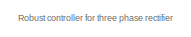
[diagram: root canvas - part 1/3, top center region]
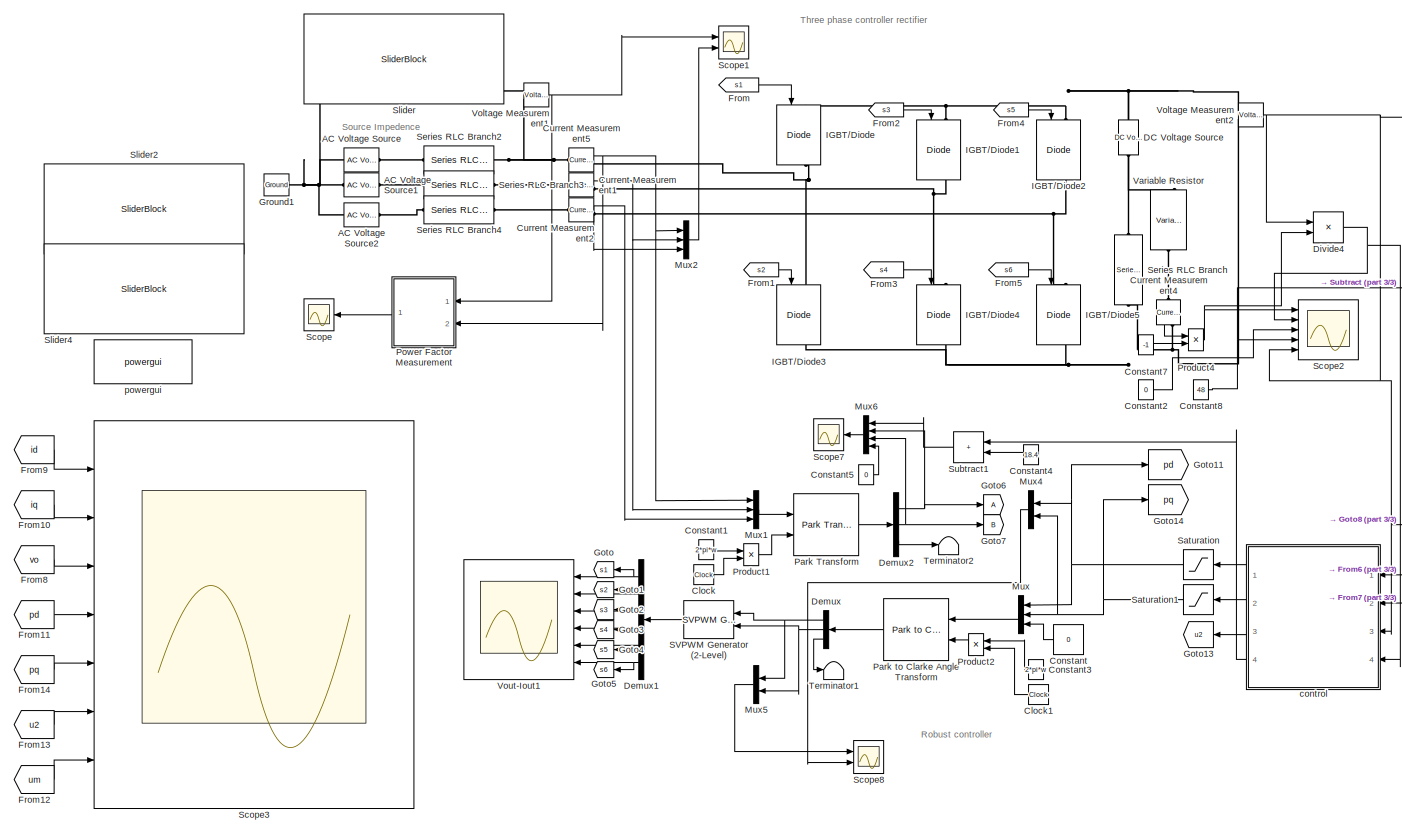
[diagram: root canvas - part 2/3, most of the canvas]
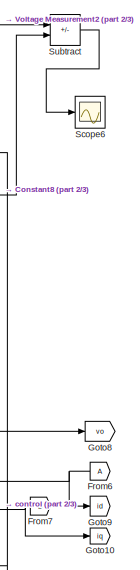
[diagram: root canvas - part 3/3, middle right region]
MODEL slx_1be8ffe14da0
KIND model
CONFIG AbsTol = auto
CONFIG EnableMultiTasking = off
CONFIG FixedStep = auto
CONFIG MaxStep = auto
CONFIG MinStep = auto
CONFIG RelTol = 1e-3
CONFIG SampleTimeConstraint = Unconstrained
CONFIG SolverName = VariableStepAuto
CONFIG StartTime = 0.0
CONFIG StopTime = 3
BLOCK [Reference] AC Voltage Source  REF=spsACVoltageSourceLib/AC Voltage Source
  Ports = [0, 0, 0, 0, 0, 1, 1]
  SourceBlock = spsACVoltageSourceLib/AC Voltage Source
  SourceProductBaseCode = PS
  SourceType = AC Voltage Source
BLOCK [Reference] AC Voltage Source1  REF=spsACVoltageSourceLib/AC Voltage Source
  Ports = [0, 0, 0, 0, 0, 1, 1]
  SourceBlock = spsACVoltageSourceLib/AC Voltage Source
  SourceProductBaseCode = PS
  SourceType = AC Voltage Source
BLOCK [Reference] AC Voltage Source2  REF=spsACVoltageSourceLib/AC Voltage Source
  Ports = [0, 0, 0, 0, 0, 1, 1]
  SourceBlock = spsACVoltageSourceLib/AC Voltage Source
  SourceProductBaseCode = PS
  SourceType = AC Voltage Source
BLOCK [Clock] Clock
BLOCK [Clock] Clock1
BLOCK [Constant] Constant
  Value = 0
BLOCK [Constant] Constant1
  Value = 2*pi*w
BLOCK [Constant] Constant2
  Value = 0
BLOCK [Constant] Constant3
  Value = 2*pi*w
BLOCK [Constant] Constant4
  Value = 18.4
BLOCK [Constant] Constant5
  Value = 0
BLOCK [Constant] Constant7
  Value = -1
BLOCK [Constant] Constant8
  Value = 48
BLOCK [Reference] Current Measurement1  REF=spsCurrentMeasurementLib/Current Measurement
  Ports = [0, 1, 0, 0, 0, 1, 1]
  SourceBlock = spsCurrentMeasurementLib/Current Measurement
  SourceProductBaseCode = PS
  SourceType = Current Measurement
BLOCK [Reference] Current Measurement2  REF=spsCurrentMeasurementLib/Current Measurement
  Ports = [0, 1, 0, 0, 0, 1, 1]
  SourceBlock = spsCurrentMeasurementLib/Current Measurement
  SourceProductBaseCode = PS
  SourceType = Current Measurement
BLOCK [Reference] Current Measurement4  REF=spsCurrentMeasurementLib/Current Measurement
  NameLocation = left
  Ports = [0, 1, 0, 0, 0, 1, 1]
  SourceBlock = spsCurrentMeasurementLib/Current Measurement
  SourceProductBaseCode = PS
  SourceType = Current Measurement
BLOCK [Reference] Current Measurement5  REF=spsCurrentMeasurementLib/Current Measurement
  Ports = [0, 1, 0, 0, 0, 1, 1]
  SourceBlock = spsCurrentMeasurementLib/Current Measurement
  SourceProductBaseCode = PS
  SourceType = Current Measurement
BLOCK [Reference] DC Voltage Source  REF=spsDCVoltageSourceLib/DC Voltage Source
  Ports = [0, 0, 0, 0, 0, 1, 1]
  SourceBlock = spsDCVoltageSourceLib/DC Voltage Source
  SourceProductBaseCode = PS
  SourceType = DC Voltage Source
BLOCK [Demux] Demux
  Outputs = 3
  Ports = [1, 3]
BLOCK [Demux] Demux1
  Outputs = 6
  Ports = [1, 6]
BLOCK [Demux] Demux2
  Outputs = 3
  Ports = [1, 3]
BLOCK [Product] Divide4
  Inputs = */
  Ports = [2, 1]
BLOCK [From] From
  CloseFcn = tagdialog Close
  GotoTag = s1
BLOCK [From] From1
  CloseFcn = tagdialog Close
  GotoTag = s2
BLOCK [From] From10
  GotoTag = iq
BLOCK [From] From11
  GotoTag = pd
BLOCK [From] From12
  GotoTag = um
BLOCK [From] From13
  GotoTag = u2
BLOCK [From] From14
  GotoTag = pq
BLOCK [From] From2
  CloseFcn = tagdialog Close
  GotoTag = s3
BLOCK [From] From3
  CloseFcn = tagdialog Close
  GotoTag = s4
BLOCK [From] From4
  CloseFcn = tagdialog Close
  GotoTag = s5
BLOCK [From] From5
  CloseFcn = tagdialog Close
  GotoTag = s6
BLOCK [From] From6
BLOCK [From] From7
  GotoTag = B
BLOCK [From] From8
  GotoTag = vo
BLOCK [From] From9
  GotoTag = id
BLOCK [Goto] Goto
  GotoTag = s1
BLOCK [Goto] Goto1
  GotoTag = s2
BLOCK [Goto] Goto10
  GotoTag = iq
BLOCK [Goto] Goto11
  GotoTag = pd
BLOCK [Goto] Goto13
  GotoTag = u2
BLOCK [Goto] Goto14
  GotoTag = pq
BLOCK [Goto] Goto2
  GotoTag = s3
BLOCK [Goto] Goto3
  GotoTag = s4
BLOCK [Goto] Goto4
  GotoTag = s5
BLOCK [Goto] Goto5
  GotoTag = s6
BLOCK [Goto] Goto6
BLOCK [Goto] Goto7
  GotoTag = B
BLOCK [Goto] Goto8
  GotoTag = vo
BLOCK [Goto] Goto9
  GotoTag = id
BLOCK [Reference] Ground1  REF=spsGroundLib/Ground
  Ports = [0, 0, 0, 0, 0, 1]
  SourceBlock = spsGroundLib/Ground
  SourceProductBaseCode = PS
  SourceType = Ground
BLOCK [Reference] IGBT//Diode  REF=spsIGBTDiodeLib/IGBT//Diode
  NameLocation = left
  Ports = [1, 1, 0, 0, 0, 1, 1]
  SourceBlock = spsIGBTDiodeLib/IGBT//Diode
  SourceProductBaseCode = PS
  SourceType = IGBT/Diode
BLOCK [Reference] IGBT//Diode1  REF=spsIGBTDiodeLib/IGBT//Diode
  NameLocation = left
  Ports = [1, 1, 0, 0, 0, 1, 1]
  SourceBlock = spsIGBTDiodeLib/IGBT//Diode
  SourceProductBaseCode = PS
  SourceType = IGBT/Diode
BLOCK [Reference] IGBT//Diode2  REF=spsIGBTDiodeLib/IGBT//Diode
  NameLocation = left
  Ports = [1, 1, 0, 0, 0, 1, 1]
  SourceBlock = spsIGBTDiodeLib/IGBT//Diode
  SourceProductBaseCode = PS
  SourceType = IGBT/Diode
BLOCK [Reference] IGBT//Diode3  REF=spsIGBTDiodeLib/IGBT//Diode
  NameLocation = left
  Ports = [1, 1, 0, 0, 0, 1, 1]
  SourceBlock = spsIGBTDiodeLib/IGBT//Diode
  SourceProductBaseCode = PS
  SourceType = IGBT/Diode
BLOCK [Reference] IGBT//Diode4  REF=spsIGBTDiodeLib/IGBT//Diode
  NameLocation = left
  Ports = [1, 1, 0, 0, 0, 1, 1]
  SourceBlock = spsIGBTDiodeLib/IGBT//Diode
  SourceProductBaseCode = PS
  SourceType = IGBT/Diode
BLOCK [Reference] IGBT//Diode5  REF=spsIGBTDiodeLib/IGBT//Diode
  NameLocation = left
  Ports = [1, 1, 0, 0, 0, 1, 1]
  SourceBlock = spsIGBTDiodeLib/IGBT//Diode
  SourceProductBaseCode = PS
  SourceType = IGBT/Diode
BLOCK [Mux] Mux
  DisplayOption = bar
  Inputs = 3
  Ports = [3, 1]
BLOCK [Mux] Mux1
  DisplayOption = bar
  Inputs = 3
  Ports = [3, 1]
BLOCK [Mux] Mux2
  DisplayOption = bar
  Inputs = 3
  Ports = [3, 1]
BLOCK [Mux] Mux4
  DisplayOption = bar
  Inputs = 2
  Ports = [2, 1]
BLOCK [Mux] Mux5
  DisplayOption = bar
  Inputs = 2
  Ports = [2, 1]
BLOCK [Mux] Mux6
  DisplayOption = bar
  Ports = [4, 1]
BLOCK [Reference] Park Transform  REF=eeTransforms/Park Transform
  Ports = [2, 1]
  SourceBlock = eeTransforms/Park Transform
  SourceProductBaseCode = PS
  SourceType = Park Transform
BLOCK [Reference] Park to Clarke Angle Transform  REF=eeTransforms/Park to Clarke
Angle Transform
  Ports = [2, 1]
  SourceBlock = eeTransforms/Park to Clarke\nAngle Transform
  SourceProductBaseCode = PS
  SourceType = Park to Clarke Angle Transform
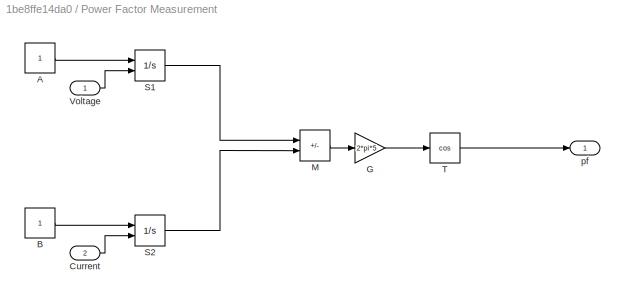
BLOCK [SubSystem] Power Factor Measurement
  Ports = [2, 1]
  RequestExecContextInheritance = off
BLOCK [Constant] Power Factor Measurement/A
BLOCK [Constant] Power Factor Measurement/B
BLOCK [Inport] Power Factor Measurement/Current
  Port = 2
BLOCK [Gain] Power Factor Measurement/G
  Gain = 2*pi*5
BLOCK [Sum] Power Factor Measurement/M
  IconShape = rectangular
  Inputs = +-
  Ports = [2, 1]
BLOCK [Integrator] Power Factor Measurement/S1
  ExternalReset = falling
  Ports = [2, 1]
BLOCK [Integrator] Power Factor Measurement/S2
  ExternalReset = falling
  Ports = [2, 1]
BLOCK [Trigonometry] Power Factor Measurement/T
  Operator = cos
  Ports = [1, 1]
BLOCK [Inport] Power Factor Measurement/Voltage
BLOCK [Outport] Power Factor Measurement/pf
BLOCK [Product] Product1
  Ports = [2, 1]
BLOCK [Product] Product2
  Ports = [2, 1]
BLOCK [Product] Product4
  Ports = [2, 1]
BLOCK [Reference] SVPWM Generator (2-Level)  REF=spsSVPWMGenerator2LevelLib/SVPWM Generator
(2-Level)
  Ports = [2, 1]
  SourceBlock = spsSVPWMGenerator2LevelLib/SVPWM Generator\n(2-Level)
  SourceProductBaseCode = PS
  SourceType = SVPWM Generator (2-Level)
BLOCK [Saturate] Saturation
  LowerLimit = -50
  NameLocation = top
  UpperLimit = 50
BLOCK [Saturate] Saturation1
  LowerLimit = -25
  NameLocation = top
  UpperLimit = 25
BLOCK [Scope] Scope
  Floating = off
  NumInputPorts = 1
  Ports = [1]
  ScopeSpecificationString = Simulink.scopes.TimeScopeBlockCfg('CurrentConfiguration', extmgr.ConfigurationSet(extmgr.Configuration('Core','General UI',true),extmgr.Configuration('Core','Source UI',true),extmgr.Configuration('Sources','WiredSimulink',true,'DataLoggingVariableName','ScopeData1'),extmgr.Configuration('Visuals','Time Domain',true,'SerializedDisplays',{struct('MinYLimReal','0.81441','MaxYLimReal','1.02062','YLabe...<+1482ch>
BLOCK [Scope] Scope1
  Floating = off
  NumInputPorts = 2
  Ports = [2]
  ScopeSpecificationString = Simulink.scopes.TimeScopeBlockCfg('CurrentConfiguration', extmgr.ConfigurationSet(extmgr.Configuration('Core','General UI',true),extmgr.Configuration('Core','Source UI',true),extmgr.Configuration('Sources','WiredSimulink',true,'DataLoggingVariableName','PDphase','DataLogging',true,'DataLoggingSaveFormat','StructureWithTime'),extmgr.Configuration('Visuals','Time Domain',true,'SerializedDisplays',{s...<+2152ch>
BLOCK [Scope] Scope2
  Floating = off
  NumInputPorts = 5
  Ports = [5]
  ScopeSpecificationString = Simulink.scopes.TimeScopeBlockCfg('CurrentConfiguration', extmgr.ConfigurationSet(extmgr.Configuration('Core','General UI',true),extmgr.Configuration('Core','Source UI',true),extmgr.Configuration('Sources','WiredSimulink',true,'DataLoggingVariableName','PDprueba','DataLogging',true,'DataLoggingSaveFormat','StructureWithTime'),extmgr.Configuration('Visuals','Time Domain',true,'SerializedDisplays',{...<+3536ch>
BLOCK [Scope] Scope3
  Floating = off
  NumInputPorts = 7
  Ports = [7]
  ScopeSpecificationString = Simulink.scopes.TimeScopeBlockCfg('CurrentConfiguration', extmgr.ConfigurationSet(extmgr.Configuration('Core','General UI',true),extmgr.Configuration('Core','Source UI',true),extmgr.Configuration('Sources','WiredSimulink',true,'DataLoggingVariableName','ScopeData4'),extmgr.Configuration('Visuals','Time Domain',true,'SerializedDisplays',{struct('MinYLimReal','-5.08621','MaxYLimReal','45.77588','YLa...<+6835ch>
BLOCK [Scope] Scope6
  Floating = off
  NumInputPorts = 1
  Ports = [1]
  ScopeSpecificationString = Simulink.scopes.TimeScopeBlockCfg('CurrentConfiguration', extmgr.ConfigurationSet(extmgr.Configuration('Core','General UI',true),extmgr.Configuration('Core','Source UI',true),extmgr.Configuration('Sources','WiredSimulink',true,'DataLoggingVariableName','ScopeData6','DataLogging',true,'DataLoggingSaveFormat','StructureWithTime'),extmgr.Configuration('Visuals','Time Domain',true,'SerializedDisplays'...<+1432ch>
BLOCK [Scope] Scope7
  Floating = off
  NumInputPorts = 1
  Ports = [1]
  ScopeSpecificationString = Simulink.scopes.TimeScopeBlockCfg('CurrentConfiguration', extmgr.ConfigurationSet(extmgr.Configuration('Core','General UI',true),extmgr.Configuration('Core','Source UI',true),extmgr.Configuration('Sources','WiredSimulink',true,'DataLoggingVariableName','idqPD','DataLogging',true,'DataLoggingSaveFormat','StructureWithTime'),extmgr.Configuration('Visuals','Time Domain',true,'SerializedDisplays',{str...<+1535ch>
BLOCK [Scope] Scope8
  Floating = off
  NumInputPorts = 2
  Ports = [2]
  ScopeSpecificationString = Simulink.scopes.TimeScopeBlockCfg('CurrentConfiguration', extmgr.ConfigurationSet(extmgr.Configuration('Core','General UI',true),extmgr.Configuration('Core','Source UI',true),extmgr.Configuration('Sources','WiredSimulink',true,'DataLoggingVariableName','ControlesPD','DataLogging',true,'DataLoggingSaveFormat','StructureWithTime'),extmgr.Configuration('Visuals','Time Domain',true,'SerializedDisplays...<+2111ch>
BLOCK [Reference] Series RLC Branch  REF=spsSeriesRLCBranchLib/Series RLC Branch
  NameLocation = left
  Ports = [0, 0, 0, 0, 0, 1, 1]
  SourceBlock = spsSeriesRLCBranchLib/Series RLC Branch
  SourceProductBaseCode = PS
  SourceType = Series RLC Branch
BLOCK [Reference] Series RLC Branch2  REF=spsSeriesRLCBranchLib/Series RLC Branch
  NameLocation = top
  Ports = [0, 0, 0, 0, 0, 1, 1]
  SourceBlock = spsSeriesRLCBranchLib/Series RLC Branch
  SourceProductBaseCode = PS
  SourceType = Series RLC Branch
BLOCK [Reference] Series RLC Branch3  REF=spsSeriesRLCBranchLib/Series RLC Branch
  NameLocation = top
  Ports = [0, 0, 0, 0, 0, 1, 1]
  SourceBlock = spsSeriesRLCBranchLib/Series RLC Branch
  SourceProductBaseCode = PS
  SourceType = Series RLC Branch
BLOCK [Reference] Series RLC Branch4  REF=spsSeriesRLCBranchLib/Series RLC Branch
  NameLocation = top
  Ports = [0, 0, 0, 0, 0, 1, 1]
  SourceBlock = spsSeriesRLCBranchLib/Series RLC Branch
  SourceProductBaseCode = PS
  SourceType = Series RLC Branch
BLOCK [SliderBlock] Slider
  ScaleMax = 50
  ScaleMin = 10
BLOCK [SliderBlock] Slider2
  ScaleMax = 5
BLOCK [SliderBlock] Slider4
  ScaleMax = 5
BLOCK [Sum] Subtract
  IconShape = rectangular
  Inputs = -+
  Ports = [2, 1]
BLOCK [Sum] Subtract1
  IconShape = rectangular
  NameLocation = top
  Ports = [2, 1]
BLOCK [Terminator] Terminator1
BLOCK [Terminator] Terminator2
BLOCK [Reference] Variable Resistor  REF=spsVariableResistorLib/Variable Resistor
  NameLocation = right
  Ports = [1, 0, 0, 0, 0, 1, 1]
  SourceBlock = spsVariableResistorLib/Variable Resistor
  SourceProductBaseCode = PS
  SourceType = Variable Resistor
BLOCK [Reference] Voltage Measurement1  REF=spsVoltageMeasurementLib/Voltage Measurement
  Ports = [0, 1, 0, 0, 0, 2]
  SourceBlock = spsVoltageMeasurementLib/Voltage Measurement
  SourceProductBaseCode = PS
  SourceType = Voltage Measurement
BLOCK [Reference] Voltage Measurement2  REF=spsVoltageMeasurementLib/Voltage Measurement
  Ports = [0, 1, 0, 0, 0, 2]
  SourceBlock = spsVoltageMeasurementLib/Voltage Measurement
  SourceProductBaseCode = PS
  SourceType = Voltage Measurement
BLOCK [Scope] Vout-Iout1
  Floating = off
  NumInputPorts = 6
  Ports = [6]
  ScopeSpecificationString = Simulink.scopes.TimeScopeBlockCfg('CurrentConfiguration', extmgr.ConfigurationSet(extmgr.Configuration('Core','General UI',true),extmgr.Configuration('Core','Source UI',true),extmgr.Configuration('Sources','WiredSimulink',true,'DataLoggingSaveFormat','StructureWithTime','DataLoggingMaxPoints','5000000','SampleTime','2e-6','DataLoggingLimitDataPoints',true,'DataLoggingDecimation','1','DataLoggingDe...<+6472ch>
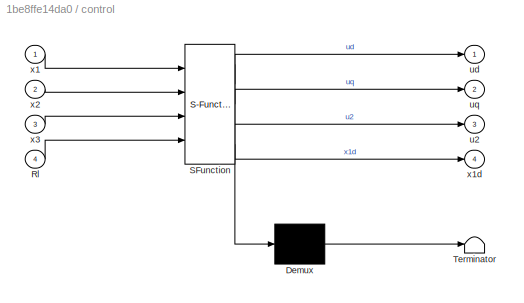
BLOCK [SubSystem] control
  ErrorFcn = Stateflow.Translate.translate
  PermitHierarchicalResolution = ExplicitOnly
  Ports = [4, 4]
  RequestExecContextInheritance = off
  SFBlockType = MATLAB Function
  TreatAsAtomicUnit = on
BLOCK [Demux] control/ Demux 
  Outputs = 1
  Ports = [1, 1]
BLOCK [S-Function] control/ SFunction 
  EnableBusSupport = off
  FunctionName = sf_sfun
  Parameters = C,E_m,L,R,epsilon,k2,k3,w,x2d,x3d
  PortCounts = [4 5]
  Ports = [4, 5]
  SFcnIsStateOwnerBlock = off
  SFunctionDeploymentMode = off
  Tag = Stateflow S-Function 1
BLOCK [Terminator] control/ Terminator 
BLOCK [Inport] control/Rl
  Port = 4
BLOCK [Outport] control/u2
  Port = 3
BLOCK [Outport] control/ud
  VectorParamsAs1DForOutWhenUnconnected = off
BLOCK [Outport] control/uq
  Port = 2
  VectorParamsAs1DForOutWhenUnconnected = off
BLOCK [Inport] control/x1
BLOCK [Outport] control/x1d
  Port = 4
BLOCK [Inport] control/x2
  Port = 2
BLOCK [Inport] control/x3
  Port = 3
BLOCK [Reference] powergui  REF=spspowerguiLib/powergui
  Ports = []
  Priority = 1
  SourceBlock = spspowerguiLib/powergui
  SourceProductBaseCode = PS
  SourceType = PSB option menu block
ANNOTATION (root): Three phase controller rectifier
ANNOTATION (root): Robust controller
ANNOTATION (root): Robust controller for three phase rectifier
ANNOTATION (root): Source Impedence
LINE Clock1:1 -> Product2:2
LINE Clock:1 -> Product1:2
LINE Constant1:1 -> Product1:1
LINE Constant2:1 -> Scope2:3
LINE Constant3:1 -> Product2:1
LINE Constant4:1 -> Subtract1:2
LINE Constant5:1 -> Mux6:4
LINE Constant7:1 -> Product4:2
NET Constant8:1 -> Scope2:4, Subtract:2
LINE Constant:1 -> Mux:3
NET Current Measurement1:1 -> Mux1:2, Mux2:2
NET Current Measurement2:1 -> Mux1:3, Mux2:3
LINE Current Measurement4:1 -> Product4:1
NET Current Measurement5:1 -> Mux1:1, Mux2:1, Power Factor Measurement:2
NET Demux1:1 -> Goto:1, Vout-Iout1:1
NET Demux1:2 -> Goto1:1, Vout-Iout1:2
NET Demux1:3 -> Goto2:1, Vout-Iout1:3
NET Demux1:4 -> Goto3:1, Vout-Iout1:4
NET Demux1:5 -> Goto4:1, Vout-Iout1:5
NET Demux1:6 -> Goto5:1, Vout-Iout1:6
NET Demux2:1 -> Goto6:1, Mux6:2
NET Demux2:2 -> Goto7:1, Mux6:3
LINE Demux2:3 -> Terminator2:1
NET Demux:1 -> Mux5:1, SVPWM Generator (2-Level):1
NET Demux:2 -> Mux5:2, SVPWM Generator (2-Level):2
LINE Demux:3 -> Terminator1:1
NET Divide4:1 -> Scope2:2, control:4
LINE From10:1 -> Scope3:2
LINE From11:1 -> Scope3:4
LINE From12:1 -> Scope3:7
LINE From13:1 -> Scope3:6
LINE From14:1 -> Scope3:5
LINE From1:1 -> IGBT//Diode3:1
LINE From2:1 -> IGBT//Diode1:1
LINE From3:1 -> IGBT//Diode4:1
LINE From4:1 -> IGBT//Diode2:1
LINE From5:1 -> IGBT//Diode5:1
NET From6:1 -> Goto9:1, control:1
NET From7:1 -> Goto10:1, control:2
LINE From8:1 -> Scope3:3
LINE From9:1 -> Scope3:1
LINE From:1 -> IGBT//Diode:1
LINE Mux1:1 -> Park Transform:1
LINE Mux2:1 -> Scope1:2
LINE Mux4:1 -> Scope8:2
LINE Mux5:1 -> Scope8:1
LINE Mux6:1 -> Scope7:1
LINE Mux:1 -> Park to Clarke Angle Transform:1
LINE Park Transform:1 -> Demux2:1
LINE Park to Clarke Angle Transform:1 -> Demux:1
LINE Power Factor Measurement/A:1 -> Power Factor Measurement/S1:1
LINE Power Factor Measurement/B:1 -> Power Factor Measurement/S2:1
LINE Power Factor Measurement/Current:1 -> Power Factor Measurement/S2:2
LINE Power Factor Measurement/G:1 -> Power Factor Measurement/T:1
LINE Power Factor Measurement/M:1 -> Power Factor Measurement/G:1
LINE Power Factor Measurement/S1:1 -> Power Factor Measurement/M:1
LINE Power Factor Measurement/S2:1 -> Power Factor Measurement/M:2
LINE Power Factor Measurement/T:1 -> Power Factor Measurement/pf:1
LINE Power Factor Measurement/Voltage:1 -> Power Factor Measurement/S1:2
LINE Power Factor Measurement:1 -> Scope:1
LINE Product1:1 -> Park Transform:2
LINE Product2:1 -> Park to Clarke Angle Transform:2
NET Product4:1 -> Divide4:2, Scope2:1
LINE SVPWM Generator (2-Level):1 -> Demux1:1
NET Saturation1:1 -> Goto14:1, Mux4:2, Mux:2
NET Saturation:1 -> Goto11:1, Mux4:1, Mux:1
LINE Subtract1:1 -> Mux6:1
LINE Subtract:1 -> Scope6:1
NET Voltage Measurement1:1 -> Power Factor Measurement:1, Scope1:1
NET Voltage Measurement2:1 -> Divide4:1, Goto8:1, Scope2:5, Subtract:1, control:3
LINE control:1 -> Saturation:1
LINE control:2 -> Saturation1:1
LINE control:3 -> Goto13:1
LINE control:4 -> Subtract1:1
PLINE AC Voltage Source1:LConn1 -- Series RLC Branch3:LConn1
PNET net1: AC Voltage Source1:RConn1 -- AC Voltage Source2:RConn1 -- AC Voltage Source:RConn1 -- Ground1:LConn1 -- Voltage Measurement1:LConn1
PLINE AC Voltage Source2:LConn1 -- Series RLC Branch4:LConn1
PLINE AC Voltage Source:LConn1 -- Series RLC Branch2:LConn1
PLINE Current Measurement1:LConn1 -- Series RLC Branch3:RConn1
PNET net2: Current Measurement1:RConn1 -- IGBT//Diode1:RConn1 -- IGBT//Diode4:LConn1
PLINE Current Measurement2:LConn1 -- Series RLC Branch4:RConn1
PNET net3: Current Measurement2:RConn1 -- IGBT//Diode2:RConn1 -- IGBT//Diode5:LConn1
PLINE Current Measurement4:LConn1 -- Variable Resistor:RConn1
PNET net4: Current Measurement4:RConn1 -- IGBT//Diode3:RConn1 -- IGBT//Diode4:RConn1 -- IGBT//Diode5:RConn1 -- Series RLC Branch:RConn1 -- Voltage Measurement2:LConn2
PNET net5: Current Measurement5:LConn1 -- Series RLC Branch2:RConn1 -- Voltage Measurement1:LConn2
PNET net6: Current Measurement5:RConn1 -- IGBT//Diode3:LConn1 -- IGBT//Diode:RConn1
PLINE DC Voltage Source:LConn1 -- Series RLC Branch:LConn1
PNET net7: DC Voltage Source:RConn1 -- IGBT//Diode1:LConn1 -- IGBT//Diode2:LConn1 -- IGBT//Diode:LConn1 -- Variable Resistor:LConn1 -- Voltage Measurement2:LConn1
note: NET lines group one-source signal fan-out (src -> all destinations, sorted); 1:1 wires keep LINE; PNET lines group multi-terminal physical nets as a canonical sorted terminal list (undirected conserving connections); 2-terminal nets keep the pairwise PLINE form
CHART control states=1 transitions=1
  STATE_LABEL 'eML_blk_kernel()'
  STATE_LABEL 'SCRIPT:\nfunction [ud , uq,u2,x1d] = fcn(x1, x2, x3, E_m, C, L, w, R, x3d, x2d, k3, k2, epsilon, Rl)\n\n\nx1d_1 = (E_m/(2*R)) + (sqrt((E_m)^2 - (8*R*x3d^2)/(3*Rl)))/(2*R);\nx1d_2 = (E_m/(2*R)) - (sqrt((E_m)^2 - (8*R*x3d^2)/(3*Rl)))/(2*R);\nx1d = x1d_2;\n\n%errors\ne1 = x1 - x1d;      e2 = x2 - x2d;      e3 = x3 - x3d;  \n\n%controls\n%para evitar singularidades agregamos el termino epsilon donde corresponda\nu...<+219ch>'
CHART  states=0 transitions=0
